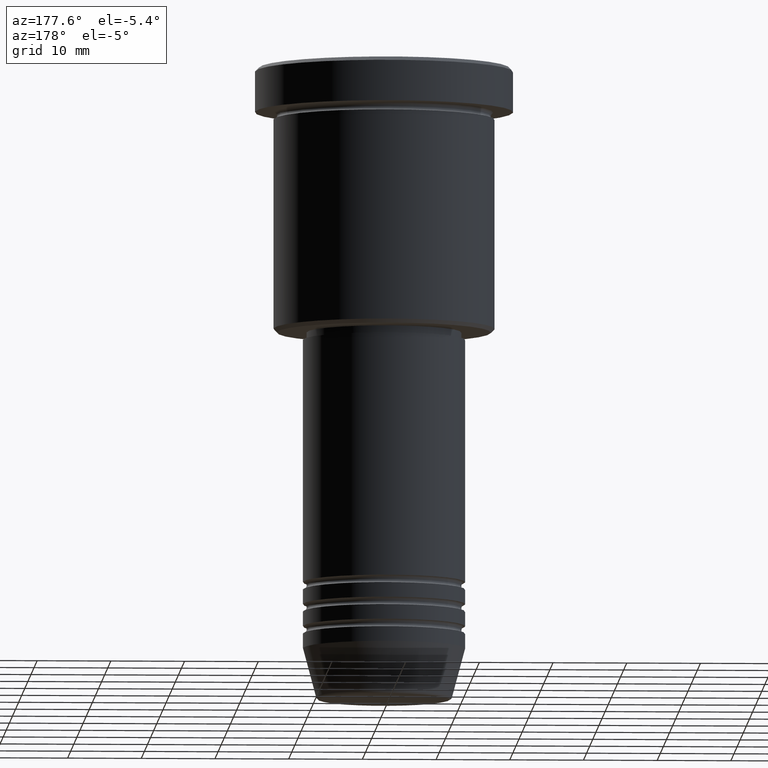
[diagram: clean part render]
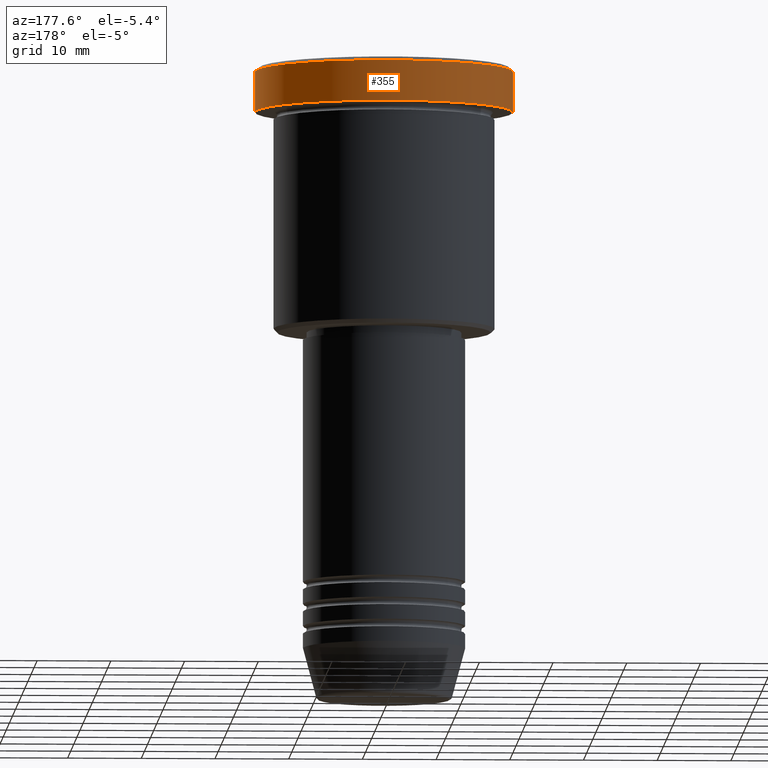
[diagram: same view with one face highlighted and labeled with its STEP entity id]
A machine part, auxiliary view. The second image highlights one B-rep face of the part: STEP entity #355.
In plain terms, the highlighted cylindrical surface (partial cylindrical patch) has radius 17.5 mm, axis along (-0, -0, 1).
Its self-contained STEP definition (entity closure, byte-faithful):
#25 = LINE ( 'NONE', #204, #218 ) ;
#30 = ORIENTED_EDGE ( 'NONE', *, *, #675, .T. ) ;
#75 = CARTESIAN_POINT ( 'NONE',  ( 0.000000000000000000, 0.000000000000000000, -5.999999999999995559 ) ) ;
#95 = DIRECTION ( 'NONE',  ( -0.000000000000000000, -0.000000000000000000, 1.000000000000000000 ) ) ;
#107 = EDGE_LOOP ( 'NONE', ( #115, #30, #680, #827 ) ) ;
#113 = EDGE_CURVE ( 'NONE', #324, #1113, #559, .T. ) ;
#115 = ORIENTED_EDGE ( 'NONE', *, *, #113, .T. ) ;
#187 = DIRECTION ( 'NONE',  ( -0.000000000000000000, -0.000000000000000000, 1.000000000000000000 ) ) ;
#204 = CARTESIAN_POINT ( 'NONE',  ( -17.50000000000000000, 2.143131898507868248E-15, 0.000000000000000000 ) ) ;
#218 = VECTOR ( 'NONE', #561, 1000.000000000000000 ) ;
#268 = EDGE_CURVE ( 'NONE', #330, #1162, #1048, .T. ) ;
#278 = CARTESIAN_POINT ( 'NONE',  ( -17.50000000000000000, 2.143131898507868248E-15, -5.999999999999995559 ) ) ;
#291 = DIRECTION ( 'NONE',  ( 0.000000000000000000, 0.000000000000000000, -1.000000000000000000 ) ) ;
#322 = FACE_OUTER_BOUND ( 'NONE', #107, .T. ) ;
#324 = VERTEX_POINT ( 'NONE', #924 ) ;
#330 = VERTEX_POINT ( 'NONE', #1160 ) ;
#355 = ADVANCED_FACE ( 'NONE', ( #322 ), #969, .T. ) ;
#370 = LINE ( 'NONE', #638, #632 ) ;
#497 = DIRECTION ( 'NONE',  ( -0.000000000000000000, -0.000000000000000000, 1.000000000000000000 ) ) ;
#527 = AXIS2_PLACEMENT_3D ( 'NONE', #1119, #291, #942 ) ;
#548 = CARTESIAN_POINT ( 'NONE',  ( 17.50000000000000000, 0.000000000000000000, -0.4999999999999864553 ) ) ;
#559 = CIRCLE ( 'NONE', #612, 17.50000000000000000 ) ;
#561 = DIRECTION ( 'NONE',  ( -0.000000000000000000, -0.000000000000000000, 1.000000000000000000 ) ) ;
#612 = AXIS2_PLACEMENT_3D ( 'NONE', #75, #95, #1076 ) ;
#632 = VECTOR ( 'NONE', #187, 1000.000000000000000 ) ;
#638 = CARTESIAN_POINT ( 'NONE',  ( 17.50000000000000000, 0.000000000000000000, 0.000000000000000000 ) ) ;
#675 = EDGE_CURVE ( 'NONE', #1113, #330, #25, .T. ) ;
#680 = ORIENTED_EDGE ( 'NONE', *, *, #268, .T. ) ;
#827 = ORIENTED_EDGE ( 'NONE', *, *, #1159, .F. ) ;
#924 = CARTESIAN_POINT ( 'NONE',  ( 17.50000000000000000, 0.000000000000000000, -5.999999999999995559 ) ) ;
#942 = DIRECTION ( 'NONE',  ( 1.000000000000000000, 0.000000000000000000, 0.000000000000000000 ) ) ;
#969 = CYLINDRICAL_SURFACE ( 'NONE', #1026, 17.50000000000000000 ) ;
#1026 = AXIS2_PLACEMENT_3D ( 'NONE', #1057, #497, #1071 ) ;
#1048 = CIRCLE ( 'NONE', #527, 17.50000000000000000 ) ;
#1057 = CARTESIAN_POINT ( 'NONE',  ( 0.000000000000000000, 0.000000000000000000, 0.000000000000000000 ) ) ;
#1071 = DIRECTION ( 'NONE',  ( 1.000000000000000000, 0.000000000000000000, 0.000000000000000000 ) ) ;
#1076 = DIRECTION ( 'NONE',  ( 1.000000000000000000, 0.000000000000000000, 0.000000000000000000 ) ) ;
#1113 = VERTEX_POINT ( 'NONE', #278 ) ;
#1119 = CARTESIAN_POINT ( 'NONE',  ( 0.000000000000000000, 0.000000000000000000, -0.4999999999999864553 ) ) ;
#1159 = EDGE_CURVE ( 'NONE', #324, #1162, #370, .T. ) ;
#1160 = CARTESIAN_POINT ( 'NONE',  ( -17.50000000000000000, 2.143131898507868248E-15, -0.4999999999999864553 ) ) ;
#1162 = VERTEX_POINT ( 'NONE', #548 ) ;